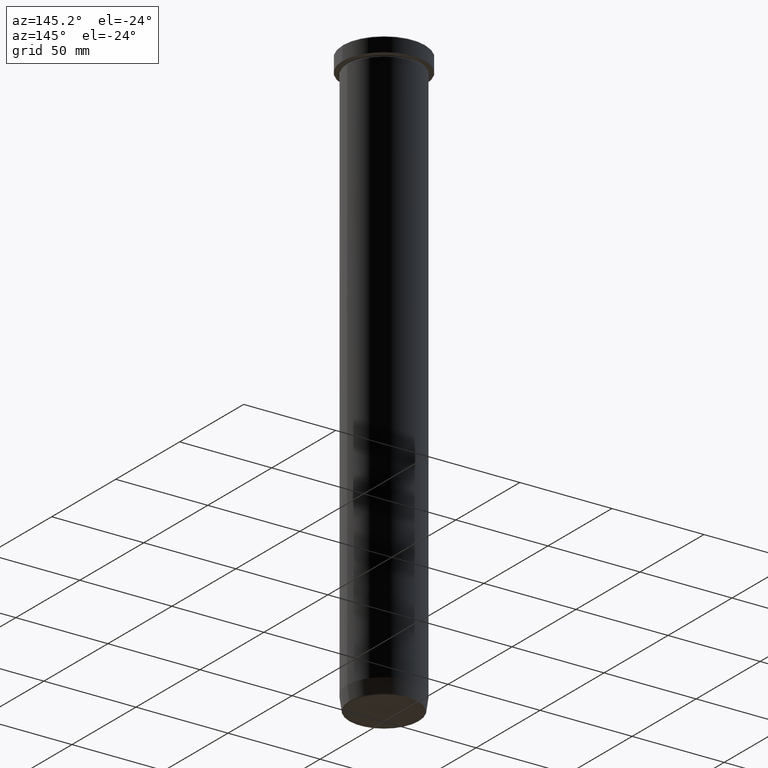
[diagram: clean part render]
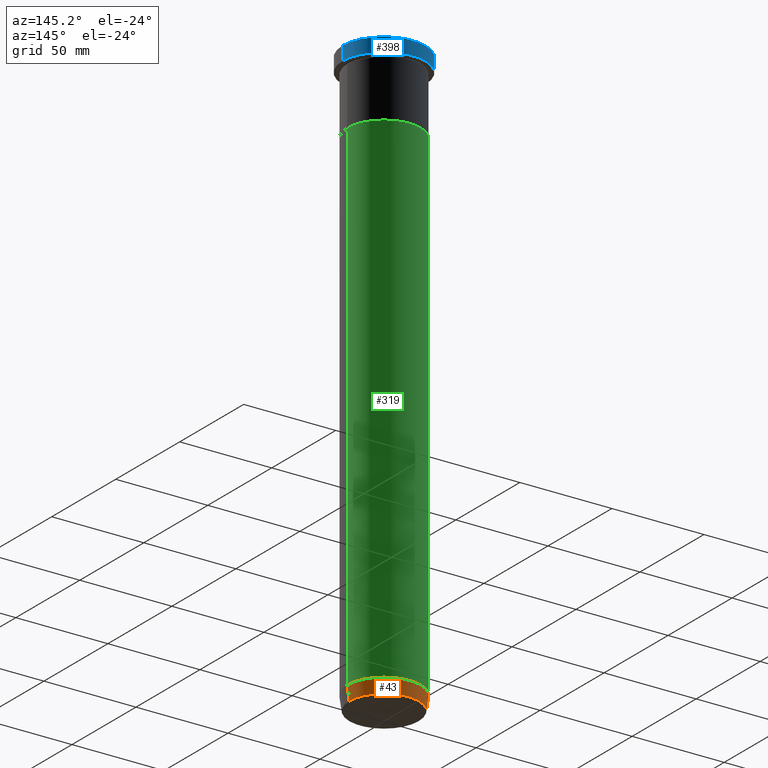
[diagram: same view with three faces highlighted in distinct colors, each labeled with its STEP entity id]
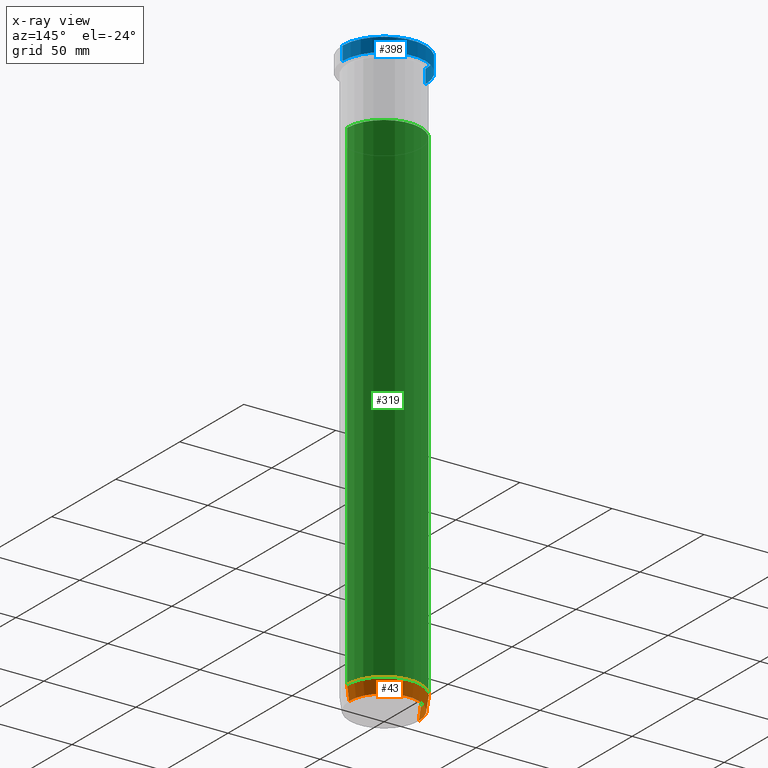
[diagram: x-ray of the same camera — body ghosted, the three highlighted faces saturated]
A machine part, auxiliary view with three faces highlighted in distinct colors.
The next image is the same camera in x-ray (body ghosted, the three faces saturated) — at least one of them is partly hidden behind the body in this view.
Their STEP definitions:

[orange] entity #43 — the highlighted conical surface has half-angle 8 deg.
#5 = DIRECTION ( 'NONE',  ( 1.000000000000000000, 0.000000000000000000, 0.000000000000000000 ) ) ;
#9 = VERTEX_POINT ( 'NONE', #318 ) ;
#43 = ADVANCED_FACE ( 'NONE', ( #484 ), #374, .T. ) ;
#61 = CARTESIAN_POINT ( 'NONE',  ( -18.87567332238086237, 2.311603291600480972E-15, -320.0000000000000000 ) ) ;
#72 = DIRECTION ( 'NONE',  ( 0.1391731009600663260, 0.000000000000000000, 0.9902680687415701399 ) ) ;
#106 = ORIENTED_EDGE ( 'NONE', *, *, #323, .T. ) ;
#111 = DIRECTION ( 'NONE',  ( -0.000000000000000000, -0.000000000000000000, 1.000000000000000000 ) ) ;
#112 = EDGE_CURVE ( 'NONE', #409, #9, #391, .T. ) ;
#214 = LINE ( 'NONE', #268, #287 ) ;
#219 = DIRECTION ( 'NONE',  ( -0.000000000000000000, -0.000000000000000000, 1.000000000000000000 ) ) ;
#222 = DIRECTION ( 'NONE',  ( 1.000000000000000000, 0.000000000000000000, 0.000000000000000000 ) ) ;
#246 = AXIS2_PLACEMENT_3D ( 'NONE', #503, #219, #222 ) ;
#252 = CIRCLE ( 'NONE', #590, 18.93616398784353194 ) ;
#257 = LINE ( 'NONE', #61, #561 ) ;
#261 = EDGE_CURVE ( 'NONE', #423, #409, #214, .T. ) ;
#268 = CARTESIAN_POINT ( 'NONE',  ( 18.87567332238086237, 0.000000000000000000, -320.0000000000000000 ) ) ;
#269 = EDGE_CURVE ( 'NONE', #423, #467, #252, .T. ) ;
#272 = DIRECTION ( 'NONE',  ( -1.000000000000000000, 0.000000000000000000, 0.000000000000000000 ) ) ;
#280 = DIRECTION ( 'NONE',  ( -0.000000000000000000, -0.000000000000000000, 1.000000000000000000 ) ) ;
#282 = CARTESIAN_POINT ( 'NONE',  ( 20.00000000000000000, 0.000000000000000000, -312.0000000000000000 ) ) ;
#287 = VECTOR ( 'NONE', #72, 1000.000000000000227 ) ;
#318 = CARTESIAN_POINT ( 'NONE',  ( -20.00000000000000000, 2.449293598294706513E-15, -312.0000000000000000 ) ) ;
#323 = EDGE_CURVE ( 'NONE', #467, #9, #257, .T. ) ;
#326 = CARTESIAN_POINT ( 'NONE',  ( 0.000000000000000000, 0.000000000000000000, -312.0000000000000000 ) ) ;
#329 = ORIENTED_EDGE ( 'NONE', *, *, #261, .F. ) ;
#335 = CARTESIAN_POINT ( 'NONE',  ( 18.93616398784353194, 0.000000000000000000, -319.5695865504800395 ) ) ;
#356 = EDGE_LOOP ( 'NONE', ( #442, #106, #550, #329 ) ) ;
#374 = CONICAL_SURFACE ( 'NONE', #246, 18.87567332238086237, 0.1396263401595472520 ) ;
#391 = CIRCLE ( 'NONE', #424, 20.00000000000000000 ) ;
#409 = VERTEX_POINT ( 'NONE', #282 ) ;
#423 = VERTEX_POINT ( 'NONE', #335 ) ;
#424 = AXIS2_PLACEMENT_3D ( 'NONE', #326, #111, #5 ) ;
#442 = ORIENTED_EDGE ( 'NONE', *, *, #269, .T. ) ;
#467 = VERTEX_POINT ( 'NONE', #555 ) ;
#484 = FACE_OUTER_BOUND ( 'NONE', #356, .T. ) ;
#503 = CARTESIAN_POINT ( 'NONE',  ( 0.000000000000000000, 0.000000000000000000, -320.0000000000000000 ) ) ;
#545 = DIRECTION ( 'NONE',  ( -0.1391731009600663260, 1.704378926181566459E-17, 0.9902680687415701399 ) ) ;
#550 = ORIENTED_EDGE ( 'NONE', *, *, #112, .F. ) ;
#551 = CARTESIAN_POINT ( 'NONE',  ( 0.000000000000000000, 0.000000000000000000, -319.5695865504800395 ) ) ;
#555 = CARTESIAN_POINT ( 'NONE',  ( -18.93616398784353194, 2.384152429939451626E-15, -319.5695865504800395 ) ) ;
#561 = VECTOR ( 'NONE', #545, 1000.000000000000227 ) ;
#590 = AXIS2_PLACEMENT_3D ( 'NONE', #551, #280, #272 ) ;

[blue] entity #398 — the highlighted cylindrical surface (partial cylindrical patch) has radius 22.5 mm, axis along (-0, -0, 1).
#11 = ORIENTED_EDGE ( 'NONE', *, *, #146, .F. ) ;
#17 = VERTEX_POINT ( 'NONE', #399 ) ;
#44 = FACE_OUTER_BOUND ( 'NONE', #64, .T. ) ;
#45 = CYLINDRICAL_SURFACE ( 'NONE', #456, 22.50000000000000000 ) ;
#49 = CARTESIAN_POINT ( 'NONE',  ( 22.50000000000000000, 0.000000000000000000, -0.4999999999999935052 ) ) ;
#64 = EDGE_LOOP ( 'NONE', ( #113, #116, #109, #11 ) ) ;
#81 = AXIS2_PLACEMENT_3D ( 'NONE', #190, #188, #189 ) ;
#82 = DIRECTION ( 'NONE',  ( 1.000000000000000000, 0.000000000000000000, 0.000000000000000000 ) ) ;
#109 = ORIENTED_EDGE ( 'NONE', *, *, #239, .T. ) ;
#113 = ORIENTED_EDGE ( 'NONE', *, *, #515, .T. ) ;
#116 = ORIENTED_EDGE ( 'NONE', *, *, #513, .T. ) ;
#121 = VERTEX_POINT ( 'NONE', #49 ) ;
#122 = CARTESIAN_POINT ( 'NONE',  ( 0.000000000000000000, 0.000000000000000000, -0.4999999999999935052 ) ) ;
#127 = VERTEX_POINT ( 'NONE', #347 ) ;
#142 = AXIS2_PLACEMENT_3D ( 'NONE', #122, #489, #483 ) ;
#146 = EDGE_CURVE ( 'NONE', #161, #121, #343, .T. ) ;
#161 = VERTEX_POINT ( 'NONE', #523 ) ;
#188 = DIRECTION ( 'NONE',  ( -0.000000000000000000, -0.000000000000000000, 1.000000000000000000 ) ) ;
#189 = DIRECTION ( 'NONE',  ( 1.000000000000000000, 0.000000000000000000, 0.000000000000000000 ) ) ;
#190 = CARTESIAN_POINT ( 'NONE',  ( 0.000000000000000000, 0.000000000000000000, -7.999999999999998224 ) ) ;
#239 = EDGE_CURVE ( 'NONE', #127, #121, #460, .T. ) ;
#293 = VECTOR ( 'NONE', #302, 1000.000000000000000 ) ;
#295 = CARTESIAN_POINT ( 'NONE',  ( 22.50000000000000000, 0.000000000000000000, 0.000000000000000000 ) ) ;
#302 = DIRECTION ( 'NONE',  ( -0.000000000000000000, -0.000000000000000000, 1.000000000000000000 ) ) ;
#327 = CARTESIAN_POINT ( 'NONE',  ( 0.000000000000000000, 0.000000000000000000, 0.000000000000000000 ) ) ;
#342 = CIRCLE ( 'NONE', #81, 22.50000000000000000 ) ;
#343 = LINE ( 'NONE', #295, #293 ) ;
#347 = CARTESIAN_POINT ( 'NONE',  ( -22.50000000000000000, 2.755455298081544778E-15, -0.4999999999999935052 ) ) ;
#398 = ADVANCED_FACE ( 'NONE', ( #44 ), #45, .T. ) ;
#399 = CARTESIAN_POINT ( 'NONE',  ( -22.50000000000000000, 2.755455298081544778E-15, -7.999999999999998224 ) ) ;
#407 = DIRECTION ( 'NONE',  ( -0.000000000000000000, -0.000000000000000000, 1.000000000000000000 ) ) ;
#419 = CARTESIAN_POINT ( 'NONE',  ( -22.50000000000000000, 2.755455298081544778E-15, 0.000000000000000000 ) ) ;
#425 = VECTOR ( 'NONE', #597, 1000.000000000000000 ) ;
#454 = LINE ( 'NONE', #419, #425 ) ;
#456 = AXIS2_PLACEMENT_3D ( 'NONE', #327, #407, #82 ) ;
#460 = CIRCLE ( 'NONE', #142, 22.50000000000000000 ) ;
#483 = DIRECTION ( 'NONE',  ( 1.000000000000000000, 0.000000000000000000, 0.000000000000000000 ) ) ;
#489 = DIRECTION ( 'NONE',  ( 0.000000000000000000, 0.000000000000000000, -1.000000000000000000 ) ) ;
#513 = EDGE_CURVE ( 'NONE', #17, #127, #454, .T. ) ;
#515 = EDGE_CURVE ( 'NONE', #161, #17, #342, .T. ) ;
#523 = CARTESIAN_POINT ( 'NONE',  ( 22.50000000000000000, 0.000000000000000000, -7.999999999999998224 ) ) ;
#597 = DIRECTION ( 'NONE',  ( -0.000000000000000000, -0.000000000000000000, 1.000000000000000000 ) ) ;

[green] entity #319 — the highlighted cylindrical surface (partial cylindrical patch) has radius 20 mm, axis along (-0, -0, 1).
#5 = DIRECTION ( 'NONE',  ( 1.000000000000000000, 0.000000000000000000, 0.000000000000000000 ) ) ;
#7 = DIRECTION ( 'NONE',  ( -0.000000000000000000, -0.000000000000000000, 1.000000000000000000 ) ) ;
#9 = VERTEX_POINT ( 'NONE', #318 ) ;
#19 = VERTEX_POINT ( 'NONE', #491 ) ;
#58 = EDGE_CURVE ( 'NONE', #9, #428, #585, .T. ) ;
#66 = CIRCLE ( 'NONE', #278, 20.00000000000000000 ) ;
#79 = VECTOR ( 'NONE', #129, 1000.000000000000000 ) ;
#111 = DIRECTION ( 'NONE',  ( -0.000000000000000000, -0.000000000000000000, 1.000000000000000000 ) ) ;
#112 = EDGE_CURVE ( 'NONE', #409, #9, #391, .T. ) ;
#129 = DIRECTION ( 'NONE',  ( -0.000000000000000000, -0.000000000000000000, 1.000000000000000000 ) ) ;
#139 = EDGE_CURVE ( 'NONE', #19, #428, #66, .T. ) ;
#165 = DIRECTION ( 'NONE',  ( -0.000000000000000000, -0.000000000000000000, 1.000000000000000000 ) ) ;
#170 = CARTESIAN_POINT ( 'NONE',  ( 0.000000000000000000, 0.000000000000000000, 0.000000000000000000 ) ) ;
#211 = ORIENTED_EDGE ( 'NONE', *, *, #112, .T. ) ;
#218 = CYLINDRICAL_SURFACE ( 'NONE', #560, 20.00000000000000000 ) ;
#220 = ORIENTED_EDGE ( 'NONE', *, *, #58, .T. ) ;
#233 = ORIENTED_EDGE ( 'NONE', *, *, #340, .F. ) ;
#244 = CARTESIAN_POINT ( 'NONE',  ( -20.00000000000000000, 2.449293598294706513E-15, -40.00000000000000000 ) ) ;
#278 = AXIS2_PLACEMENT_3D ( 'NONE', #527, #7, #569 ) ;
#282 = CARTESIAN_POINT ( 'NONE',  ( 20.00000000000000000, 0.000000000000000000, -312.0000000000000000 ) ) ;
#318 = CARTESIAN_POINT ( 'NONE',  ( -20.00000000000000000, 2.449293598294706513E-15, -312.0000000000000000 ) ) ;
#319 = ADVANCED_FACE ( 'NONE', ( #405 ), #218, .T. ) ;
#326 = CARTESIAN_POINT ( 'NONE',  ( 0.000000000000000000, 0.000000000000000000, -312.0000000000000000 ) ) ;
#340 = EDGE_CURVE ( 'NONE', #409, #19, #387, .T. ) ;
#360 = DIRECTION ( 'NONE',  ( -0.000000000000000000, -0.000000000000000000, 1.000000000000000000 ) ) ;
#369 = VECTOR ( 'NONE', #165, 1000.000000000000000 ) ;
#387 = LINE ( 'NONE', #580, #369 ) ;
#391 = CIRCLE ( 'NONE', #424, 20.00000000000000000 ) ;
#395 = EDGE_LOOP ( 'NONE', ( #211, #220, #397, #233 ) ) ;
#397 = ORIENTED_EDGE ( 'NONE', *, *, #139, .F. ) ;
#401 = CARTESIAN_POINT ( 'NONE',  ( -20.00000000000000000, 2.449293598294706513E-15, 0.000000000000000000 ) ) ;
#405 = FACE_OUTER_BOUND ( 'NONE', #395, .T. ) ;
#409 = VERTEX_POINT ( 'NONE', #282 ) ;
#424 = AXIS2_PLACEMENT_3D ( 'NONE', #326, #111, #5 ) ;
#428 = VERTEX_POINT ( 'NONE', #244 ) ;
#491 = CARTESIAN_POINT ( 'NONE',  ( 20.00000000000000000, 0.000000000000000000, -40.00000000000000000 ) ) ;
#527 = CARTESIAN_POINT ( 'NONE',  ( 0.000000000000000000, 0.000000000000000000, -40.00000000000000000 ) ) ;
#560 = AXIS2_PLACEMENT_3D ( 'NONE', #170, #360, #587 ) ;
#569 = DIRECTION ( 'NONE',  ( 1.000000000000000000, 0.000000000000000000, 0.000000000000000000 ) ) ;
#580 = CARTESIAN_POINT ( 'NONE',  ( 20.00000000000000000, 0.000000000000000000, 0.000000000000000000 ) ) ;
#585 = LINE ( 'NONE', #401, #79 ) ;
#587 = DIRECTION ( 'NONE',  ( 1.000000000000000000, 0.000000000000000000, 0.000000000000000000 ) ) ;